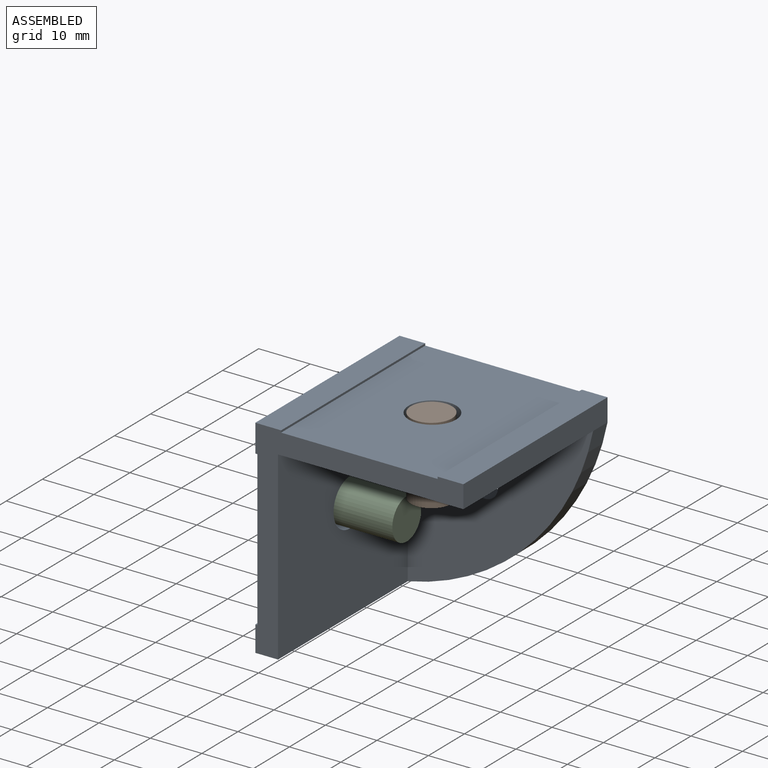
[diagram: assembled view]
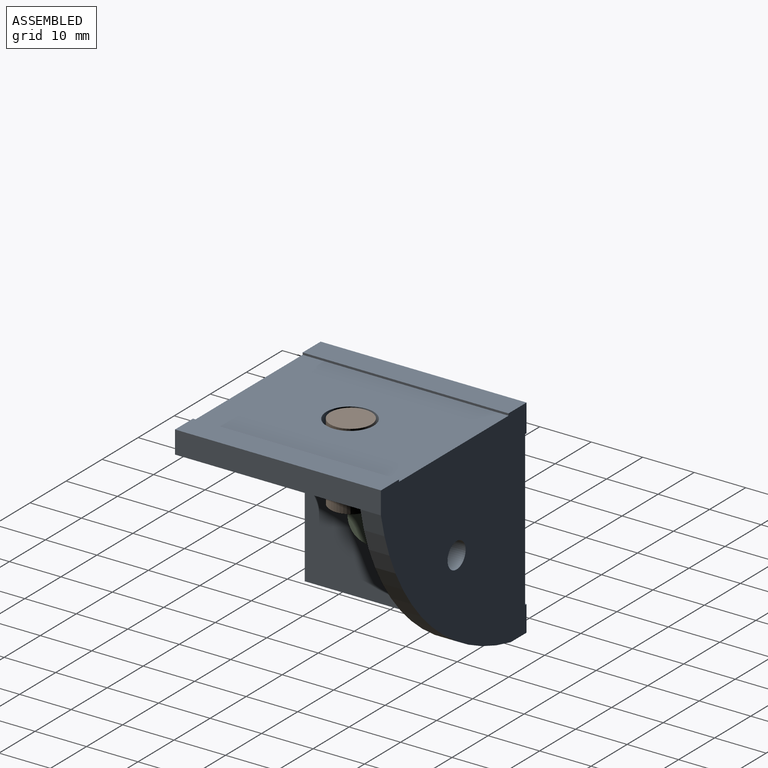
[diagram: assembled view, second angle]
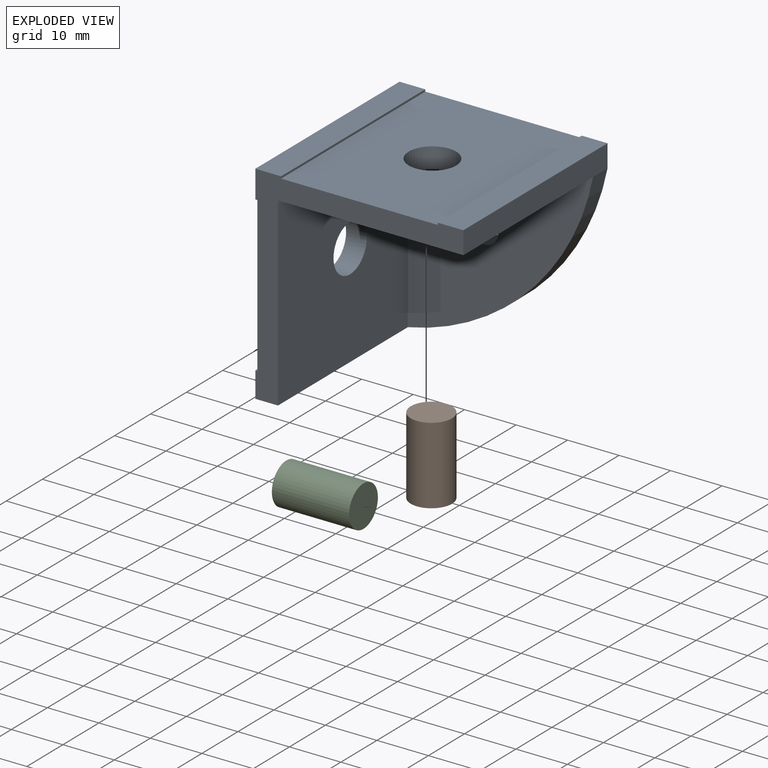
[diagram: exploded view]
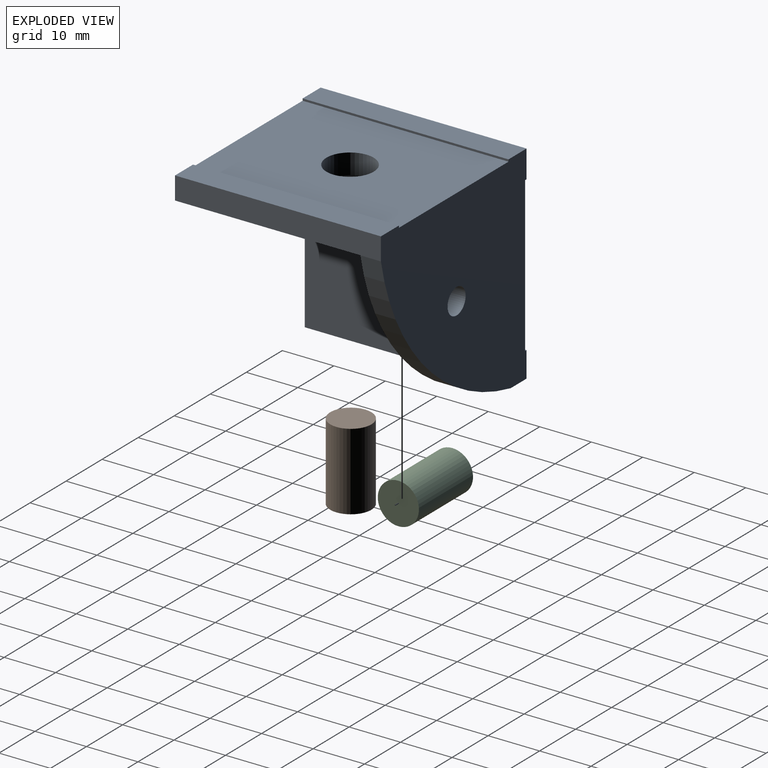
[diagram: exploded view, second angle]
ASSEMBLY  parts=3 mates=2
PART A: 21 faces, bbox 40.4x40x40.4 mm
  f0: plane 40x30mm, normal (-1,0,0), area 1133.5mm2, adj f6,f7,f12,f13,f15
  f1: plane 40x30.4mm, normal (0,0,1), area 1149.5mm2, adj f6,f7,f11,f17,f19
  f2: plane 40x4.4mm, normal (0,0,-1), area 176mm2, adj f3,f6,f7,f8,f14
  f3: plane 36x36mm, normal (1,0,0), area 1229.5mm2, adj f2,f4,f6,f9,f12
  f4: plane 36x36mm, normal (0,0,-1), area 1229.5mm2, adj f3,f5,f6,f9,f11
  f5: plane 40x4.4mm, normal (1,0,0), area 176mm2, adj f4,f6,f7,f8,f20
  f6: plane 40.4x40.4mm, normal (0,-1,0), area 312mm2, adj f0,f1,f2,f3,f4,f5,f13,f14
  f7: plane 40.4x40.4mm, normal (0,1,0), area 1207.2mm2, adj f0,f1,f2,f5,f8,f10,f13,f14
  f8: cylinder r=45.82mm len=36mm, axis (0,1,0), area 215.9mm2, adj f2,f5,f7,f9
  f9: plane 36x36mm, normal (0,-1,0), area 895.2mm2, adj f3,f4,f8,f10
  f10: cylinder r=2.5mm len=5mm, axis (0,-1,0), area 62.8mm2, adj f7,f9
  f11: cylinder r=4.6mm len=9.2mm, axis (0,0,1), area 115.6mm2, adj f1,f4
  f12: cylinder r=4.6mm len=9.2mm, axis (-1,0,0), area 115.6mm2, adj f0,f3
  f13: plane 40x0.4mm, normal (0,0,1), area 16mm2, adj f0,f6,f7,f14
  f14: plane 40x5mm, normal (-1,0,0), area 200mm2, adj f2,f6,f7,f13
  f15: plane 40x0.4mm, normal (0,0,-1), area 16mm2, adj f0,f6,f7,f16
  f16: plane 40x5.4mm, normal (-1,0,0), area 216mm2, adj f6,f7,f15,f18
  f17: plane 40x0.4mm, normal (1,0,0), area 16mm2, adj f1,f6,f7,f18
  f18: plane 40x5mm, normal (0,0,1), area 200mm2, adj f6,f7,f16,f17
  f19: plane 40x0.4mm, normal (-1,0,0), area 16mm2, adj f1,f6,f7,f20
  f20: plane 40x5mm, normal (0,0,1), area 200mm2, adj f5,f6,f7,f19
PART B: 3 faces, bbox 8x15x8 mm
  f0: cylinder r=4mm len=15mm, axis (0,1,0), area 377mm2, adj f1,f2
  f1: plane 8x8mm, normal (0,-1,0), area 50.3mm2, adj f0
  f2: plane 8x8mm, normal (0,1,0), area 50.3mm2, adj f0
PART C: same geometry as B
PLACE A t=(-78.29,14.05,-40.64)mm
PLACE B rot(axis=(-1,0,0),90deg) t=(-89.28,44.04,28.14)mm
PLACE C rot(axis=(-0.58,-0.58,-0.58),120deg) t=(-38.05,44.04,-32.88)mm
MATE fastened C.f0 <-> A.f12  axis (-1,0,0) through (-53.05,-5.95,23.14)mm
MATE fastened B.f0 <-> A.f1  axis (0,0,1) through (-33.26,-5.95,43.14)mm
